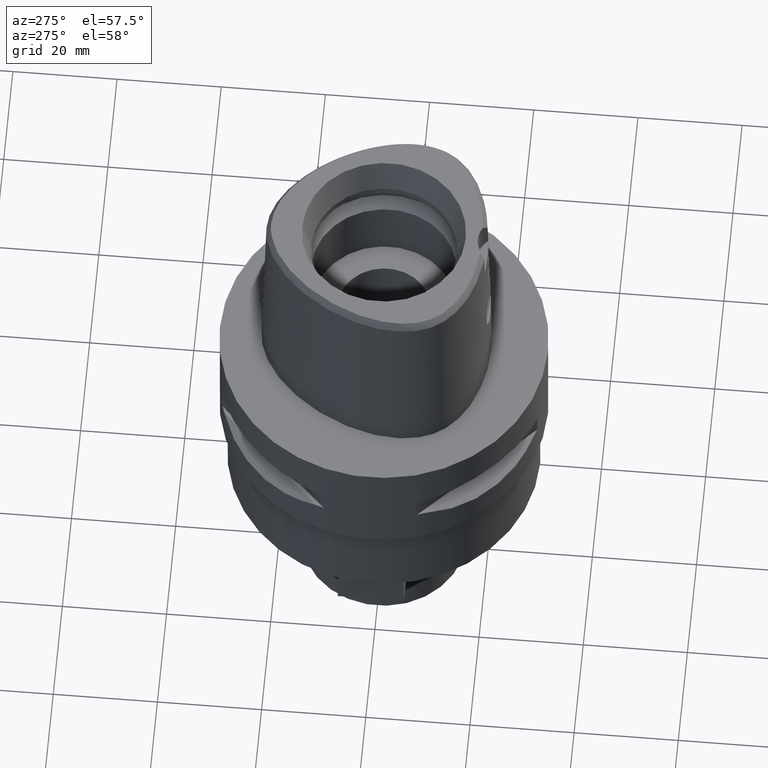
[diagram: clean part render]
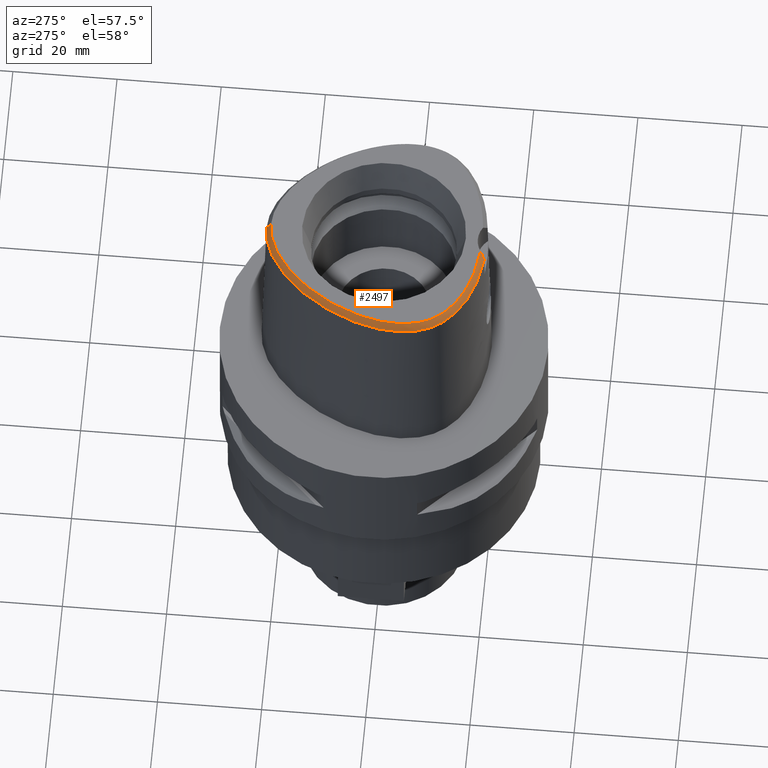
[diagram: same view with one face highlighted and labeled with its STEP entity id]
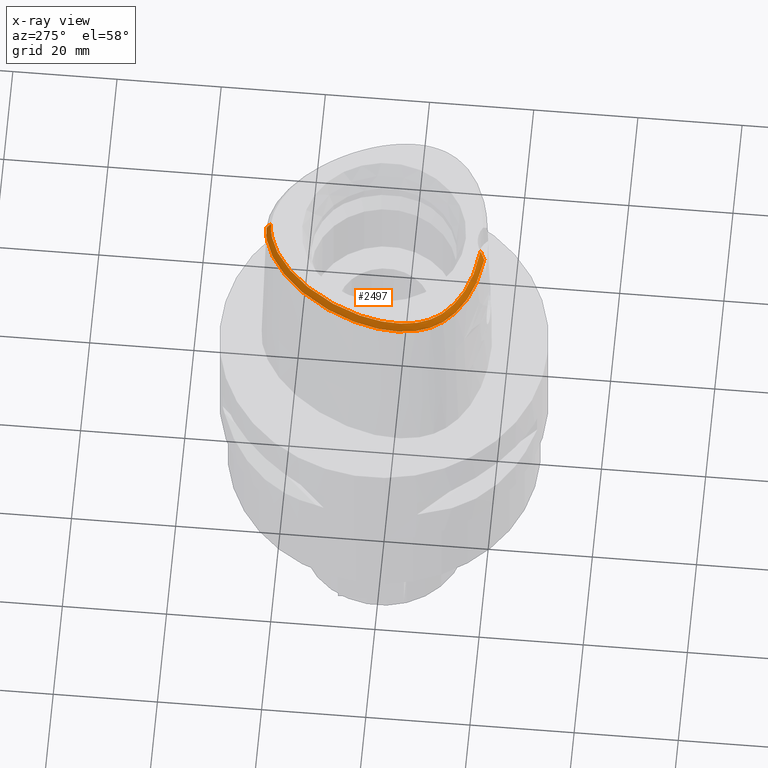
[diagram: x-ray of the same camera — body ghosted, the highlighted face saturated]
A machine part, auxiliary view. The second image highlights one B-rep face of the part: STEP entity #2497.
The next image is the same camera in x-ray: the body ghosted, the highlighted face saturated — about 0% of this face is hidden behind the body in this view.
In plain terms, the highlighted face is a freeform B-spline surface patch.
Its self-contained STEP definition (entity closure, byte-faithful):
#34=CARTESIAN_POINT('',(-2.682279906005E0,-1.878035848610E1,3.8E1));
#35=CARTESIAN_POINT('',(-3.542684252615E0,-1.871149542856E1,3.8E1));
#36=CARTESIAN_POINT('',(-5.170900762050E0,-1.851498175062E1,3.8E1));
#37=CARTESIAN_POINT('',(-7.384743339320E0,-1.807555510833E1,3.8E1));
#38=CARTESIAN_POINT('',(-9.236301783595E0,-1.756641540527E1,3.8E1));
#39=CARTESIAN_POINT('',(-1.085956236626E1,-1.700080306317E1,3.8E1));
#40=CARTESIAN_POINT('',(-1.233269681922E1,-1.636948330550E1,3.8E1));
#41=CARTESIAN_POINT('',(-1.367390539554E1,-1.567422530037E1,3.8E1));
#42=CARTESIAN_POINT('',(-1.489775850368E1,-1.491299728992E1,3.8E1));
#43=CARTESIAN_POINT('',(-1.601551275396E1,-1.407582522433E1,3.8E1));
#44=CARTESIAN_POINT('',(-1.697700266821E1,-1.320310694529E1,3.8E1));
#45=CARTESIAN_POINT('',(-1.777861122549E1,-1.231957036430E1,3.8E1));
#46=CARTESIAN_POINT('',(-1.843904442737E1,-1.142943643228E1,3.8E1));
#47=CARTESIAN_POINT('',(-1.898429820691E1,-1.051501724725E1,3.8E1));
#48=CARTESIAN_POINT('',(-1.944540071623E1,-9.525088501950E0,3.8E1));
#49=CARTESIAN_POINT('',(-1.983058892854E1,-8.426345650525E0,3.8E1));
#50=CARTESIAN_POINT('',(-2.013196699494E1,-7.195847311692E0,3.8E1));
#51=CARTESIAN_POINT('',(-2.033103332303E1,-5.827338183120E0,3.8E1));
#52=CARTESIAN_POINT('',(-2.040988868810E1,-4.395969024624E0,3.8E1));
#53=CARTESIAN_POINT('',(-2.037268694022E1,-2.907760486794E0,3.8E1));
#54=CARTESIAN_POINT('',(-2.021598093571E1,-1.338764890676E0,3.8E1));
#55=CARTESIAN_POINT('',(-1.993237140046E1,3.152115768366E-1,3.8E1));
#56=CARTESIAN_POINT('',(-1.949507058968E1,2.123537742689E0,3.8E1));
#57=CARTESIAN_POINT('',(-1.884170218999E1,4.181892070023E0,3.8E1));
#58=CARTESIAN_POINT('',(-1.792369696252E1,6.456800824738E0,3.8E1));
#59=CARTESIAN_POINT('',(-1.678338887765E1,8.749921771021E0,3.8E1));
#60=CARTESIAN_POINT('',(-1.547466348741E1,1.094681242026E1,3.8E1));
#61=CARTESIAN_POINT('',(-1.400561577317E1,1.303181560872E1,3.8E1));
#62=CARTESIAN_POINT('',(-1.249470891774E1,1.485421335933E1,3.8E1));
#63=CARTESIAN_POINT('',(-1.108622198193E1,1.631794580162E1,3.8E1));
#64=CARTESIAN_POINT('',(-9.765674941770E0,1.751518803746E1,3.8E1));
#65=CARTESIAN_POINT('',(-8.483038826251E0,1.852764142548E1,3.8E1));
#66=CARTESIAN_POINT('',(-7.208933178398E0,1.939336301656E1,3.8E1));
#67=CARTESIAN_POINT('',(-5.932895999780E0,2.012450270830E1,3.8E1));
#68=CARTESIAN_POINT('',(-4.655029159068E0,2.072139129841E1,3.8E1));
#69=CARTESIAN_POINT('',(-3.398657390787E0,2.117407849146E1,3.8E1));
#70=CARTESIAN_POINT('',(-2.205929336932E0,2.147805146315E1,3.8E1));
#71=CARTESIAN_POINT('',(-1.082079509466E0,2.165007100264E1,3.8E1));
#72=CARTESIAN_POINT('',(-3.556136655468E-1,2.168728795389E1,3.8E1));
#73=CARTESIAN_POINT('',(-3.470663397188E-11,2.168728795390E1,3.8E1));
#192=CARTESIAN_POINT('',(-2.682279906005E0,-1.878035848610E1,3.8E1));
#193=CARTESIAN_POINT('',(-2.797912367637E0,-1.885386203546E1,3.786059898424E1));
#194=CARTESIAN_POINT('',(-3.023156947592E0,-1.901042548575E1,3.756466629536E1));
#195=CARTESIAN_POINT('',(-3.340776899659E0,-1.927219914263E1,3.707384379575E1));
#196=CARTESIAN_POINT('',(-3.541104082211E0,-1.946723589967E1,3.671136089486E1));
#197=CARTESIAN_POINT('',(-3.637738201364E0,-1.956971413237E1,3.652186244848E1));
#202=CARTESIAN_POINT('',(-3.637738201364E0,-1.956971413237E1,3.652186244848E1));
#203=CARTESIAN_POINT('',(-4.486932885481E0,-1.947923535722E1,3.652183681646E1));
#204=CARTESIAN_POINT('',(-6.101212647339E0,-1.924210963504E1,3.652187752429E1));
#205=CARTESIAN_POINT('',(-8.254631691771E0,-1.875971295293E1,3.652186163132E1));
#206=CARTESIAN_POINT('',(-1.007598729789E1,-1.821444384571E1,3.652186218780E1));
#207=CARTESIAN_POINT('',(-1.169654532737E1,-1.760826827091E1,3.652186817716E1));
#208=CARTESIAN_POINT('',(-1.318420354667E1,-1.692845210417E1,3.652186461354E1));
#209=CARTESIAN_POINT('',(-1.454623217160E1,-1.617852293546E1,3.652186686001E1));
#210=CARTESIAN_POINT('',(-1.580964712866E1,-1.534227721997E1,3.652187346644E1));
#211=CARTESIAN_POINT('',(-1.692926369281E1,-1.444688220072E1,3.652186243370E1));
#212=CARTESIAN_POINT('',(-1.787345800209E1,-1.353569366994E1,3.652187701555E1));
#213=CARTESIAN_POINT('',(-1.867063399162E1,-1.260470986936E1,3.652185017249E1));
#214=CARTESIAN_POINT('',(-1.932886034372E1,-1.166552922317E1,3.652190248902E1));
#215=CARTESIAN_POINT('',(-1.987853970588E1,-1.068960508297E1,3.652186419304E1));
#216=CARTESIAN_POINT('',(-2.034776195062E1,-9.623507358363E0,3.652186400976E1));
#217=CARTESIAN_POINT('',(-2.073553510204E1,-8.445808241732E0,3.652187125078E1));
#218=CARTESIAN_POINT('',(-2.103240200113E1,-7.141622069972E0,3.652186475231E1));
#219=CARTESIAN_POINT('',(-2.122265042573E1,-5.695641138325E0,3.652186967309E1));
#220=CARTESIAN_POINT('',(-2.128749296478E1,-4.177126351640E0,3.652186545121E1));
#221=CARTESIAN_POINT('',(-2.122983439707E1,-2.610073835341E0,3.652186694925E1));
#222=CARTESIAN_POINT('',(-2.104763385542E1,-9.671913455925E-1,
3.652186739195E1));
#223=CARTESIAN_POINT('',(-2.073230745605E1,7.634491119599E-1,3.652186412544E1));
#224=CARTESIAN_POINT('',(-2.025446144837E1,2.654421161613E0,3.652186236132E1));
#225=CARTESIAN_POINT('',(-1.954675941223E1,4.803796890117E0,3.652186894586E1));
#226=CARTESIAN_POINT('',(-1.857319827940E1,7.140710386331E0,3.652185771818E1));
#227=CARTESIAN_POINT('',(-1.739857824020E1,9.445579087779E0,3.652185113077E1));
#228=CARTESIAN_POINT('',(-1.604940642725E1,1.166587527492E1,3.652187557152E1));
#229=CARTESIAN_POINT('',(-1.455493411980E1,1.375221108986E1,3.652185704300E1));
#230=CARTESIAN_POINT('',(-1.300329151091E1,1.559776192680E1,3.652187328236E1));
#231=CARTESIAN_POINT('',(-1.155862161445E1,1.707808949397E1,3.652185864653E1));
#232=CARTESIAN_POINT('',(-1.020478049702E1,1.828956605743E1,3.652186913946E1));
#233=CARTESIAN_POINT('',(-8.874682476541E0,1.932551116007E1,3.652186760214E1));
#234=CARTESIAN_POINT('',(-7.545395588133E0,2.021521272114E1,3.652186775024E1));
#235=CARTESIAN_POINT('',(-6.201273240435E0,2.097156371629E1,3.652186494857E1));
#236=CARTESIAN_POINT('',(-4.851360784127E0,2.158722018411E1,3.652187204991E1));
#237=CARTESIAN_POINT('',(-3.536645305539E0,2.204649321013E1,3.652186542900E1));
#238=CARTESIAN_POINT('',(-2.302563744641E0,2.235126219632E1,3.652188129796E1));
#239=CARTESIAN_POINT('',(-1.120650484306E0,2.252540464369E1,3.652177653667E1));
#240=CARTESIAN_POINT('',(-3.747147296148E-1,2.256201468012E1,3.652186680743E1));
#241=CARTESIAN_POINT('',(-1.528869574988E-11,2.256201468012E1,
3.652186680744E1));
#246=DIRECTION('',(-1.130551362479E-11,-5.092834681090E-1,8.605988316927E-1));
#247=VECTOR('',#246,1.717563559379E0);
#248=CARTESIAN_POINT('',(-1.528869574988E-11,2.256201468012E1,
3.652186680744E1));
#249=LINE('',#248,#247);
#253=CARTESIAN_POINT('',(-3.637738201364E0,-1.956971413237E1,3.652186244848E1));
#1729=CARTESIAN_POINT('',(-2.682279906007E0,-1.878035848610E1,3.8E1));
#1731=VERTEX_POINT('',#1729);
#1734=VERTEX_POINT('',#73);
#1745=VERTEX_POINT('',#253);
#1746=CARTESIAN_POINT('',(-1.528869574988E-11,2.256201468012E1,
3.652186680744E1));
#1747=VERTEX_POINT('',#1746);
#2241=CARTESIAN_POINT('',(5.898093660277E-1,2.158543294755E1,3.814548675373E1));
#2242=CARTESIAN_POINT('',(6.091653676367E-1,2.193386211718E1,3.755576774308E1));
#2243=CARTESIAN_POINT('',(6.285213692458E-1,2.228229128682E1,3.696604873243E1));
#2244=CARTESIAN_POINT('',(6.478773708549E-1,2.263072045646E1,3.637632972177E1));
#2245=CARTESIAN_POINT('',(3.881375314906E-1,2.159585889078E1,3.814548671110E1));
#2246=CARTESIAN_POINT('',(4.011042705876E-1,2.194465852400E1,3.755576787326E1));
#2247=CARTESIAN_POINT('',(4.140710096847E-1,2.229345815722E1,3.696604903542E1));
#2248=CARTESIAN_POINT('',(4.270377487817E-1,2.264225779043E1,3.637633019757E1));
#2249=CARTESIAN_POINT('',(-2.537208051187E-2,2.160716800241E1,
3.814548668170E1));
#2250=CARTESIAN_POINT('',(-2.613133781331E-2,2.195635558331E1,
3.755576796302E1));
#2251=CARTESIAN_POINT('',(-2.689059511475E-2,2.230554316420E1,
3.696604924434E1));
#2252=CARTESIAN_POINT('',(-2.764985241619E-2,2.265473074510E1,
3.637633052565E1));
#2253=CARTESIAN_POINT('',(-6.445009571746E-1,2.158780025950E1,
3.814548673204E1));
#2254=CARTESIAN_POINT('',(-6.663815284087E-1,2.193632344949E1,
3.755576780929E1));
#2255=CARTESIAN_POINT('',(-6.882620996428E-1,2.228484663948E1,
3.696604888654E1));
#2256=CARTESIAN_POINT('',(-7.101426708769E-1,2.263336982947E1,
3.637632996379E1));
#2257=CARTESIAN_POINT('',(-1.312964808659E0,2.152550651623E1,3.814548676288E1));
#2258=CARTESIAN_POINT('',(-1.356375857555E0,2.187200092598E1,3.755576771517E1));
#2259=CARTESIAN_POINT('',(-1.399786906451E0,2.221849533574E1,3.696604866747E1));
#2260=CARTESIAN_POINT('',(-1.443197955347E0,2.256498974549E1,3.637632961977E1));
#2261=CARTESIAN_POINT('',(-2.001102303137E0,2.141814363534E1,3.814548671196E1));
#2262=CARTESIAN_POINT('',(-2.065644411550E0,2.176132510905E1,3.755576787062E1));
#2263=CARTESIAN_POINT('',(-2.130186519963E0,2.210450658276E1,3.696604902929E1));
#2264=CARTESIAN_POINT('',(-2.194728628376E0,2.244768805647E1,3.637633018795E1));
#2265=CARTESIAN_POINT('',(-2.714698494356E0,2.126204244383E1,3.814548665849E1));
#2266=CARTESIAN_POINT('',(-2.799819321881E0,2.160070000363E1,3.755576803389E1));
#2267=CARTESIAN_POINT('',(-2.884940149406E0,2.193935756344E1,3.696604940929E1));
#2268=CARTESIAN_POINT('',(-2.970060976932E0,2.227801512325E1,3.637633078469E1));
#2269=CARTESIAN_POINT('',(-3.455094024799E0,2.105294491064E1,3.814548667003E1));
#2270=CARTESIAN_POINT('',(-3.560171572799E0,2.138594419104E1,3.755576799866E1));
#2271=CARTESIAN_POINT('',(-3.665249120800E0,2.171894347145E1,3.696604932729E1));
#2272=CARTESIAN_POINT('',(-3.770326668800E0,2.205194275185E1,3.637633065592E1));
#2273=CARTESIAN_POINT('',(-4.223886859376E0,2.078610331193E1,3.814548671299E1));
#2274=CARTESIAN_POINT('',(-4.348214534956E0,2.111239688427E1,3.755576786747E1));
#2275=CARTESIAN_POINT('',(-4.472542210536E0,2.143869045660E1,3.696604902194E1));
#2276=CARTESIAN_POINT('',(-4.596869886115E0,2.176498402894E1,3.637633017642E1));
#2277=CARTESIAN_POINT('',(-5.022987421240E0,2.045584795473E1,3.814548666634E1));
#2278=CARTESIAN_POINT('',(-5.165801753445E0,2.077447573189E1,3.755576800994E1));
#2279=CARTESIAN_POINT('',(-5.308616085650E0,2.109310350905E1,3.696604935354E1));
#2280=CARTESIAN_POINT('',(-5.451430417855E0,2.141173128621E1,3.637633069714E1));
#2281=CARTESIAN_POINT('',(-5.853955413870E0,2.005584965462E1,3.814548665391E1));
#2282=CARTESIAN_POINT('',(-6.014422585839E0,2.036595392107E1,3.755576804790E1));
#2283=CARTESIAN_POINT('',(-6.174889757809E0,2.067605818751E1,3.696604944189E1));
#2284=CARTESIAN_POINT('',(-6.335356929779E0,2.098616245395E1,3.637633083589E1));
#2285=CARTESIAN_POINT('',(-6.715697240747E0,1.958033935E1,3.814548671019E1));
#2286=CARTESIAN_POINT('',(-6.892979802224E0,1.988113873090E1,3.755576787600E1));
#2287=CARTESIAN_POINT('',(-7.070262363700E0,2.018193811180E1,3.696604904181E1));
#2288=CARTESIAN_POINT('',(-7.247544925177E0,2.048273749270E1,3.637633020763E1));
#2289=CARTESIAN_POINT('',(-7.607553768072E0,1.902277979740E1,3.814548670690E1));
#2290=CARTESIAN_POINT('',(-7.800776687245E0,1.931358757640E1,3.755576788607E1));
#2291=CARTESIAN_POINT('',(-7.993999606418E0,1.960439535540E1,3.696604906525E1));
#2292=CARTESIAN_POINT('',(-8.187222525590E0,1.989520313440E1,3.637633024442E1));
#2293=CARTESIAN_POINT('',(-8.526834037250E0,1.837743950038E1,3.814548675756E1));
#2294=CARTESIAN_POINT('',(-8.735125108121E0,1.865764424377E1,3.755576773141E1));
#2295=CARTESIAN_POINT('',(-8.943416178992E0,1.893784898715E1,3.696604870527E1));
#2296=CARTESIAN_POINT('',(-9.151707249863E0,1.921805373054E1,3.637632967913E1));
#2297=CARTESIAN_POINT('',(-9.469442653189E0,1.763921054972E1,3.814548657416E1));
#2298=CARTESIAN_POINT('',(-9.691953658514E0,1.790825381789E1,3.755576829140E1));
#2299=CARTESIAN_POINT('',(-9.914464663838E0,1.817729708607E1,3.696605000865E1));
#2300=CARTESIAN_POINT('',(-1.013697566916E1,1.844634035425E1,3.637633172589E1));
#2301=CARTESIAN_POINT('',(-1.043143767159E1,1.680281224439E1,3.814548635376E1));
#2302=CARTESIAN_POINT('',(-1.066729225876E1,1.706022994465E1,3.755576896438E1));
#2303=CARTESIAN_POINT('',(-1.090314684593E1,1.731764764491E1,3.696605157499E1));
#2304=CARTESIAN_POINT('',(-1.113900143309E1,1.757506534517E1,3.637633418561E1));
#2305=CARTESIAN_POINT('',(-1.140436614484E1,1.586688344335E1,3.814548637126E1));
#2306=CARTESIAN_POINT('',(-1.165273990042E1,1.611223683987E1,3.755576891092E1));
#2307=CARTESIAN_POINT('',(-1.190111365601E1,1.635759023639E1,3.696605145059E1));
#2308=CARTESIAN_POINT('',(-1.214948741160E1,1.660294363290E1,3.637633399025E1));
#2309=CARTESIAN_POINT('',(-1.237700347368E1,1.483382992030E1,3.814548663286E1));
#2310=CARTESIAN_POINT('',(-1.263709323195E1,1.506672144803E1,3.755576811216E1));
#2311=CARTESIAN_POINT('',(-1.289718299021E1,1.529961297576E1,3.696604959145E1));
#2312=CARTESIAN_POINT('',(-1.315727274848E1,1.553250450348E1,3.637633107075E1));
#2313=CARTESIAN_POINT('',(-1.333748563480E1,1.370840206331E1,3.814548675615E1));
#2314=CARTESIAN_POINT('',(-1.360854100362E1,1.392842889677E1,3.755576773570E1));
#2315=CARTESIAN_POINT('',(-1.387959637244E1,1.414845573023E1,3.696604871525E1));
#2316=CARTESIAN_POINT('',(-1.415065174127E1,1.436848256369E1,3.637632969480E1));
#2317=CARTESIAN_POINT('',(-1.427463568360E1,1.249659648248E1,3.814548664650E1));
#2318=CARTESIAN_POINT('',(-1.455589522979E1,1.270341506635E1,3.755576807051E1));
#2319=CARTESIAN_POINT('',(-1.483715477599E1,1.291023365022E1,3.696604949452E1));
#2320=CARTESIAN_POINT('',(-1.511841432218E1,1.311705223410E1,3.637633091853E1));
#2321=CARTESIAN_POINT('',(-1.517519443933E1,1.120949988790E1,3.814548662133E1));
#2322=CARTESIAN_POINT('',(-1.546594765578E1,1.140274145468E1,3.755576814737E1));
#2323=CARTESIAN_POINT('',(-1.575670087223E1,1.159598302145E1,3.696604967341E1));
#2324=CARTESIAN_POINT('',(-1.604745408868E1,1.178922458822E1,3.637633119945E1));
#2325=CARTESIAN_POINT('',(-1.602415801397E1,9.864509356620E0,3.814548670893E1));
#2326=CARTESIAN_POINT('',(-1.632371207880E1,1.004380494783E1,3.755576787988E1));
#2327=CARTESIAN_POINT('',(-1.662326614362E1,1.022310053903E1,3.696604905084E1));
#2328=CARTESIAN_POINT('',(-1.692282020844E1,1.040239613024E1,3.637633022179E1));
#2329=CARTESIAN_POINT('',(-1.681056867439E1,8.477131996285E0,3.814548667616E1));
#2330=CARTESIAN_POINT('',(-1.711826533368E1,8.642063436666E0,3.755576797994E1));
#2331=CARTESIAN_POINT('',(-1.742596199298E1,8.806994877047E0,3.696604928371E1));
#2332=CARTESIAN_POINT('',(-1.773365865227E1,8.971926317428E0,3.637633058749E1));
#2333=CARTESIAN_POINT('',(-1.752652072366E1,7.061718301227E0,3.814548661875E1));
#2334=CARTESIAN_POINT('',(-1.784166926260E1,7.211922805241E0,3.755576815522E1));
#2335=CARTESIAN_POINT('',(-1.815681780154E1,7.362127309254E0,3.696604969168E1));
#2336=CARTESIAN_POINT('',(-1.847196634049E1,7.512331813267E0,3.637633122814E1));
#2337=CARTESIAN_POINT('',(-1.816360450045E1,5.637914673099E0,3.814548668105E1));
#2338=CARTESIAN_POINT('',(-1.848554011432E1,5.772966136123E0,3.755576796499E1));
#2339=CARTESIAN_POINT('',(-1.880747572818E1,5.908017599148E0,3.696604924893E1));
#2340=CARTESIAN_POINT('',(-1.912941134205E1,6.043069062173E0,3.637633053286E1));
#2341=CARTESIAN_POINT('',(-1.871556811880E1,4.226786066406E0,3.814548676536E1));
#2342=CARTESIAN_POINT('',(-1.904361432297E1,4.346239835574E0,3.755576770756E1));
#2343=CARTESIAN_POINT('',(-1.937166052714E1,4.465693604741E0,3.696604864976E1));
#2344=CARTESIAN_POINT('',(-1.969970673132E1,4.585147373909E0,3.637632959196E1));
#2345=CARTESIAN_POINT('',(-1.918097716044E1,2.843067653640E0,3.814548652557E1));
#2346=CARTESIAN_POINT('',(-1.951444306564E1,2.946443004232E0,3.755576843977E1));
#2347=CARTESIAN_POINT('',(-1.984790897084E1,3.049818354824E0,3.696605035397E1));
#2348=CARTESIAN_POINT('',(-2.018137487604E1,3.153193705415E0,3.637633226817E1));
#2349=CARTESIAN_POINT('',(-1.956091602331E1,1.498830725528E0,3.814548633111E1));
#2350=CARTESIAN_POINT('',(-1.989907070936E1,1.585665786311E0,3.755576903352E1));
#2351=CARTESIAN_POINT('',(-2.023722539541E1,1.672500847094E0,3.696605173592E1));
#2352=CARTESIAN_POINT('',(-2.057538008146E1,1.759335907877E0,3.637633443833E1));
#2353=CARTESIAN_POINT('',(-1.985749578923E1,2.070358300489E-1,
3.814548639835E1));
#2354=CARTESIAN_POINT('',(-2.019957948081E1,2.768303300384E-1,
3.755576882822E1));
#2355=CARTESIAN_POINT('',(-2.054166317239E1,3.466248300278E-1,
3.696605125810E1));
#2356=CARTESIAN_POINT('',(-2.088374686397E1,4.164193300173E-1,
3.637633368797E1));
#2357=CARTESIAN_POINT('',(-2.007496593124E1,-1.022590179154E0,
3.814548666504E1));
#2358=CARTESIAN_POINT('',(-2.042017044100E1,-9.703334614786E-1,
3.755576801390E1));
#2359=CARTESIAN_POINT('',(-2.076537495075E1,-9.180767438036E-1,
3.696604936276E1));
#2360=CARTESIAN_POINT('',(-2.111057946051E1,-8.658200261285E-1,
3.637633071162E1));
#2361=CARTESIAN_POINT('',(-2.021926271910E1,-2.185814849232E0,
3.814548674983E1));
#2362=CARTESIAN_POINT('',(-2.056672794271E1,-2.151620383318E0,
3.755576775502E1));
#2363=CARTESIAN_POINT('',(-2.091419316631E1,-2.117425917404E0,
3.696604876022E1));
#2364=CARTESIAN_POINT('',(-2.126165838991E1,-2.083231451489E0,
3.637632976542E1));
#2365=CARTESIAN_POINT('',(-2.029696504899E1,-3.282217059269E0,
3.814548671366E1));
#2366=CARTESIAN_POINT('',(-2.064576240446E1,-3.266521379780E0,
3.755576786544E1));
#2367=CARTESIAN_POINT('',(-2.099455975994E1,-3.250825700291E0,
3.696604901721E1));
#2368=CARTESIAN_POINT('',(-2.134335711542E1,-3.235130020801E0,
3.637633016899E1));
#2369=CARTESIAN_POINT('',(-2.031446698828E1,-4.310613675546E0,
3.814548669565E1));
#2370=CARTESIAN_POINT('',(-2.066360948568E1,-4.313872341336E0,
3.755576792046E1));
#2371=CARTESIAN_POINT('',(-2.101275198308E1,-4.317131007126E0,
3.696604914527E1));
#2372=CARTESIAN_POINT('',(-2.136189448048E1,-4.320389672916E0,
3.637633037009E1));
#2373=CARTESIAN_POINT('',(-2.027802616634E1,-5.272898222201E0,
3.814548662194E1));
#2374=CARTESIAN_POINT('',(-2.062645950363E1,-5.295485928525E0,
3.755576814549E1));
#2375=CARTESIAN_POINT('',(-2.097489284093E1,-5.318073634849E0,
3.696604966903E1));
#2376=CARTESIAN_POINT('',(-2.132332617823E1,-5.340661341174E0,
3.637633119257E1));
#2377=CARTESIAN_POINT('',(-2.019347578210E1,-6.171500876288E0,
3.814548666973E1));
#2378=CARTESIAN_POINT('',(-2.054008391583E1,-6.213740396906E0,
3.755576799957E1));
#2379=CARTESIAN_POINT('',(-2.088669204957E1,-6.255979917524E0,
3.696604932940E1));
#2380=CARTESIAN_POINT('',(-2.123330018330E1,-6.298219438143E0,
3.637633065924E1));
#2381=CARTESIAN_POINT('',(-2.006613228499E1,-7.008893156022E0,
3.814548672700E1));
#2382=CARTESIAN_POINT('',(-2.040973535628E1,-7.071050309579E0,
3.755576782473E1));
#2383=CARTESIAN_POINT('',(-2.075333842756E1,-7.133207463137E0,
3.696604892246E1));
#2384=CARTESIAN_POINT('',(-2.109694149885E1,-7.195364616695E0,
3.637633002020E1));
#2385=CARTESIAN_POINT('',(-1.990047099558E1,-7.789614030341E0,
3.814548672208E1));
#2386=CARTESIAN_POINT('',(-2.023983922599E1,-7.871837119443E0,
3.755576783973E1));
#2387=CARTESIAN_POINT('',(-2.057920745640E1,-7.954060208544E0,
3.696604895738E1));
#2388=CARTESIAN_POINT('',(-2.091857568681E1,-8.036283297645E0,
3.637633007502E1));
#2389=CARTESIAN_POINT('',(-1.970025715955E1,-8.517898772228E0,
3.814548671288E1));
#2390=CARTESIAN_POINT('',(-2.003411694337E1,-8.620240429655E0,
3.755576786784E1));
#2391=CARTESIAN_POINT('',(-2.036797672718E1,-8.722582087083E0,
3.696604902280E1));
#2392=CARTESIAN_POINT('',(-2.070183651100E1,-8.824923744511E0,
3.637633017776E1));
#2393=CARTESIAN_POINT('',(-1.946851566249E1,-9.197972175951E0,
3.814548666971E1));
#2394=CARTESIAN_POINT('',(-1.979556008596E1,-9.320375810367E0,
3.755576799965E1));
#2395=CARTESIAN_POINT('',(-2.012260450943E1,-9.442779444784E0,
3.696604932959E1));
#2396=CARTESIAN_POINT('',(-2.044964893289E1,-9.565183079201E0,
3.637633065953E1));
#2397=CARTESIAN_POINT('',(-1.920724043340E1,-9.834584173273E0,
3.814548669405E1));
#2398=CARTESIAN_POINT('',(-1.952614993770E1,-9.976852256234E0,
3.755576792531E1));
#2399=CARTESIAN_POINT('',(-1.984505944201E1,-1.011912033919E1,
3.696604915657E1));
#2400=CARTESIAN_POINT('',(-2.016396894632E1,-1.026138842216E1,
3.637633038784E1));
#2401=CARTESIAN_POINT('',(-1.891886135874E1,-1.042976681666E1,
3.814548673625E1));
#2402=CARTESIAN_POINT('',(-1.922832966134E1,-1.059156567867E1,
3.755576779646E1));
#2403=CARTESIAN_POINT('',(-1.953779796394E1,-1.075336454068E1,
3.696604885668E1));
#2404=CARTESIAN_POINT('',(-1.984726626653E1,-1.091516340269E1,
3.637632991689E1));
#2405=CARTESIAN_POINT('',(-1.860241690532E1,-1.099094522336E1,
3.814548669320E1));
#2406=CARTESIAN_POINT('',(-1.890103050655E1,-1.117199855064E1,
3.755576792792E1));
#2407=CARTESIAN_POINT('',(-1.919964410777E1,-1.135305187791E1,
3.696604916264E1));
#2408=CARTESIAN_POINT('',(-1.949825770900E1,-1.153410520518E1,
3.637633039737E1));
#2409=CARTESIAN_POINT('',(-1.824674248740E1,-1.153874598811E1,
3.814548673618E1));
#2410=CARTESIAN_POINT('',(-1.853348004356E1,-1.173806060861E1,
3.755576779667E1));
#2411=CARTESIAN_POINT('',(-1.882021759971E1,-1.193737522911E1,
3.696604885717E1));
#2412=CARTESIAN_POINT('',(-1.910695515587E1,-1.213668984961E1,
3.637632991767E1));
#2413=CARTESIAN_POINT('',(-1.784248217441E1,-1.208434256201E1,
3.814548665648E1));
#2414=CARTESIAN_POINT('',(-1.811638375676E1,-1.230095215403E1,
3.755576804002E1));
#2415=CARTESIAN_POINT('',(-1.839028533910E1,-1.251756174605E1,
3.696604942356E1));
#2416=CARTESIAN_POINT('',(-1.866418692145E1,-1.273417133807E1,
3.637633080710E1));
#2417=CARTESIAN_POINT('',(-1.738700601855E1,-1.262620033866E1,
3.814548670559E1));
#2418=CARTESIAN_POINT('',(-1.764719929046E1,-1.285908896171E1,
3.755576789009E1));
#2419=CARTESIAN_POINT('',(-1.790739256237E1,-1.309197758476E1,
3.696604907458E1));
#2420=CARTESIAN_POINT('',(-1.816758583427E1,-1.332486620781E1,
3.637633025908E1));
#2421=CARTESIAN_POINT('',(-1.687575568476E1,-1.316472945990E1,
3.814548671866E1));
#2422=CARTESIAN_POINT('',(-1.712149655147E1,-1.341281096902E1,
3.755576785016E1));
#2423=CARTESIAN_POINT('',(-1.736723741819E1,-1.366089247814E1,
3.696604898167E1));
#2424=CARTESIAN_POINT('',(-1.761297828491E1,-1.390897398727E1,
3.637633011318E1));
#2425=CARTESIAN_POINT('',(-1.630341870080E1,-1.369991092645E1,
3.814548672778E1));
#2426=CARTESIAN_POINT('',(-1.653407969982E1,-1.396206297582E1,
3.755576782235E1));
#2427=CARTESIAN_POINT('',(-1.676474069883E1,-1.422421502518E1,
3.696604891692E1));
#2428=CARTESIAN_POINT('',(-1.699540169785E1,-1.448636707454E1,
3.637633001149E1));
#2429=CARTESIAN_POINT('',(-1.566483265490E1,-1.423056591651E1,
3.814548669794E1));
#2430=CARTESIAN_POINT('',(-1.587989285284E1,-1.450565171024E1,
3.755576791342E1));
#2431=CARTESIAN_POINT('',(-1.609495305078E1,-1.478073750397E1,
3.696604912891E1));
#2432=CARTESIAN_POINT('',(-1.631001324872E1,-1.505582329769E1,
3.637633034439E1));
#2433=CARTESIAN_POINT('',(-1.495384635200E1,-1.475540857753E1,
3.814548662444E1));
#2434=CARTESIAN_POINT('',(-1.515290811998E1,-1.504227456250E1,
3.755576813786E1));
#2435=CARTESIAN_POINT('',(-1.535196988796E1,-1.532914054747E1,
3.696604965128E1));
#2436=CARTESIAN_POINT('',(-1.555103165593E1,-1.561600653244E1,
3.637633116470E1));
#2437=CARTESIAN_POINT('',(-1.416492817048E1,-1.527179400568E1,
3.814548666673E1));
#2438=CARTESIAN_POINT('',(-1.434768814127E1,-1.556930290096E1,
3.755576800873E1));
#2439=CARTESIAN_POINT('',(-1.453044811207E1,-1.586681179625E1,
3.696604935073E1));
#2440=CARTESIAN_POINT('',(-1.471320808286E1,-1.616432069153E1,
3.637633069273E1));
#2441=CARTESIAN_POINT('',(-1.329356991042E1,-1.577573390525E1,
3.814548671641E1));
#2442=CARTESIAN_POINT('',(-1.345979221637E1,-1.608278079824E1,
3.755576785704E1));
#2443=CARTESIAN_POINT('',(-1.362601452233E1,-1.638982769124E1,
3.696604899767E1));
#2444=CARTESIAN_POINT('',(-1.379223682828E1,-1.669687458423E1,
3.637633013829E1));
#2445=CARTESIAN_POINT('',(-1.233442816323E1,-1.626321026706E1,
3.814548672706E1));
#2446=CARTESIAN_POINT('',(-1.248399276464E1,-1.657869903639E1,
3.755576782450E1));
#2447=CARTESIAN_POINT('',(-1.263355736606E1,-1.689418780572E1,
3.696604892194E1));
#2448=CARTESIAN_POINT('',(-1.278312196748E1,-1.720967657506E1,
3.637633001938E1));
#2449=CARTESIAN_POINT('',(-1.128514206182E1,-1.672831099455E1,
3.814548673327E1));
#2450=CARTESIAN_POINT('',(-1.141795956124E1,-1.705120077395E1,
3.755576780556E1));
#2451=CARTESIAN_POINT('',(-1.155077706066E1,-1.737409055335E1,
3.696604887785E1));
#2452=CARTESIAN_POINT('',(-1.168359456008E1,-1.769698033275E1,
3.637632995013E1));
#2453=CARTESIAN_POINT('',(-1.014272845793E1,-1.716520783735E1,
3.814548647981E1));
#2454=CARTESIAN_POINT('',(-1.025878713521E1,-1.749448623641E1,
3.755576857950E1));
#2455=CARTESIAN_POINT('',(-1.037484581248E1,-1.782376463547E1,
3.696605067920E1));
#2456=CARTESIAN_POINT('',(-1.049090448975E1,-1.815304303454E1,
3.637633277889E1));
#2457=CARTESIAN_POINT('',(-8.905591862300E0,-1.756743061065E1,
3.814548633817E1));
#2458=CARTESIAN_POINT('',(-9.004917543260E0,-1.790213119436E1,
3.755576901197E1));
#2459=CARTESIAN_POINT('',(-9.104243224220E0,-1.823683177807E1,
3.696605168576E1));
#2460=CARTESIAN_POINT('',(-9.203568905180E0,-1.857153236178E1,
3.637633435955E1));
#2461=CARTESIAN_POINT('',(-7.578983638017E0,-1.792642404509E1,
3.814548644643E1));
#2462=CARTESIAN_POINT('',(-7.661620201556E0,-1.826562605561E1,
3.755576868142E1));
#2463=CARTESIAN_POINT('',(-7.744256765096E0,-1.860482806614E1,
3.696605091640E1));
#2464=CARTESIAN_POINT('',(-7.826893328635E0,-1.894403007666E1,
3.637633315138E1));
#2465=CARTESIAN_POINT('',(-6.172093909643E0,-1.823372987469E1,
3.814548672638E1));
#2466=CARTESIAN_POINT('',(-6.238092866740E0,-1.857655403648E1,
3.755576782659E1));
#2467=CARTESIAN_POINT('',(-6.304091823838E0,-1.891937819828E1,
3.696604892681E1));
#2468=CARTESIAN_POINT('',(-6.370090780935E0,-1.926220236007E1,
3.637633002703E1));
#2469=CARTESIAN_POINT('',(-4.694806273915E0,-1.848195648042E1,
3.814548670780E1));
#2470=CARTESIAN_POINT('',(-4.744209977368E0,-1.882755941479E1,
3.755576788337E1));
#2471=CARTESIAN_POINT('',(-4.793613680822E0,-1.917316234916E1,
3.696604905893E1));
#2472=CARTESIAN_POINT('',(-4.843017384276E0,-1.951876528352E1,
3.637633023450E1));
#2473=CARTESIAN_POINT('',(-3.513842264159E0,-1.862248160744E1,
3.814548663153E1));
#2474=CARTESIAN_POINT('',(-3.550544267369E0,-1.896959034296E1,
3.755576811622E1));
#2475=CARTESIAN_POINT('',(-3.587246270579E0,-1.931669907849E1,
3.696604960092E1));
#2476=CARTESIAN_POINT('',(-3.623948273789E0,-1.966380781402E1,
3.637633108561E1));
#2477=CARTESIAN_POINT('',(-2.631875431648E0,-1.869949998442E1,
3.814548662156E1));
#2478=CARTESIAN_POINT('',(-2.659258667417E0,-1.904742241050E1,
3.755576814667E1));
#2479=CARTESIAN_POINT('',(-2.686641903187E0,-1.939534483658E1,
3.696604967179E1));
#2480=CARTESIAN_POINT('',(-2.714025138956E0,-1.974326726266E1,
3.637633119690E1));
#2481=CARTESIAN_POINT('',(-2.267913806279E0,-1.872526352110E1,
3.814548662615E1));
#2482=CARTESIAN_POINT('',(-2.291481303911E0,-1.907345591710E1,
3.755576813266E1));
#2483=CARTESIAN_POINT('',(-2.315048801543E0,-1.942164831311E1,
3.696604963917E1));
#2484=CARTESIAN_POINT('',(-2.338616299176E0,-1.976984070912E1,
3.637633114569E1));
#2485=CARTESIAN_POINT('',(-2.063322010714E0,-1.873785383434E1,
3.814548663089E1));
#2486=CARTESIAN_POINT('',(-2.084751493368E0,-1.908617777687E1,
3.755576811817E1));
#2487=CARTESIAN_POINT('',(-2.106180976022E0,-1.943450171941E1,
3.696604960545E1));
#2488=CARTESIAN_POINT('',(-2.127610458676E0,-1.978282566194E1,
3.637633109272E1));
#2489=B_SPLINE_SURFACE_WITH_KNOTS('',3,3,((#2241,#2242,#2243,#2244),(#2245,
#2246,#2247,#2248),(#2249,#2250,#2251,#2252),(#2253,#2254,#2255,#2256),(#2257,
#2258,#2259,#2260),(#2261,#2262,#2263,#2264),(#2265,#2266,#2267,#2268),(#2269,
#2270,#2271,#2272),(#2273,#2274,#2275,#2276),(#2277,#2278,#2279,#2280),(#2281,
#2282,#2283,#2284),(#2285,#2286,#2287,#2288),(#2289,#2290,#2291,#2292),(#2293,
#2294,#2295,#2296),(#2297,#2298,#2299,#2300),(#2301,#2302,#2303,#2304),(#2305,
#2306,#2307,#2308),(#2309,#2310,#2311,#2312),(#2313,#2314,#2315,#2316),(#2317,
#2318,#2319,#2320),(#2321,#2322,#2323,#2324),(#2325,#2326,#2327,#2328),(#2329,
#2330,#2331,#2332),(#2333,#2334,#2335,#2336),(#2337,#2338,#2339,#2340),(#2341,
#2342,#2343,#2344),(#2345,#2346,#2347,#2348),(#2349,#2350,#2351,#2352),(#2353,
#2354,#2355,#2356),(#2357,#2358,#2359,#2360),(#2361,#2362,#2363,#2364),(#2365,
#2366,#2367,#2368),(#2369,#2370,#2371,#2372),(#2373,#2374,#2375,#2376),(#2377,
#2378,#2379,#2380),(#2381,#2382,#2383,#2384),(#2385,#2386,#2387,#2388),(#2389,
#2390,#2391,#2392),(#2393,#2394,#2395,#2396),(#2397,#2398,#2399,#2400),(#2401,
#2402,#2403,#2404),(#2405,#2406,#2407,#2408),(#2409,#2410,#2411,#2412),(#2413,
#2414,#2415,#2416),(#2417,#2418,#2419,#2420),(#2421,#2422,#2423,#2424),(#2425,
#2426,#2427,#2428),(#2429,#2430,#2431,#2432),(#2433,#2434,#2435,#2436),(#2437,
#2438,#2439,#2440),(#2441,#2442,#2443,#2444),(#2445,#2446,#2447,#2448),(#2449,
#2450,#2451,#2452),(#2453,#2454,#2455,#2456),(#2457,#2458,#2459,#2460),(#2461,
#2462,#2463,#2464),(#2465,#2466,#2467,#2468),(#2469,#2470,#2471,#2472),(#2473,
#2474,#2475,#2476),(#2477,#2478,#2479,#2480),(#2481,#2482,#2483,#2484),(#2485,
#2486,#2487,#2488)),.UNSPECIFIED.,.F.,.F.,.F.,(4,1,1,1,1,1,1,1,1,1,1,1,1,1,1,1,
1,1,1,1,1,1,1,1,1,1,1,1,1,1,1,1,1,1,1,1,1,1,1,1,1,1,1,1,1,1,1,1,1,1,1,1,1,1,1,1,
1,1,1,4),(4,4),(-1.585043674195E-2,0.E0,1.776034072166E-2,3.552068144392E-2,
5.328102216617E-2,7.104136288843E-2,8.880170361069E-2,1.065620443330E-1,
1.243223850552E-1,1.420827257775E-1,1.598430664997E-1,1.776034072219E-1,
1.953637479442E-1,2.131240886664E-1,2.308844293888E-1,2.486447701110E-1,
2.664051108333E-1,2.841654515555E-1,3.019257922778E-1,3.19686133E-1,
3.374464737223E-1,3.552068144445E-1,3.729671551668E-1,3.907274958891E-1,
4.084878366113E-1,4.262481773336E-1,4.440085180558E-1,4.617688587781E-1,
4.795291995003E-1,4.972895402226E-1,5.150498809448E-1,5.328102216671E-1,
5.505705623894E-1,5.683309031116E-1,5.860912438339E-1,6.038515845561E-1,
6.216119252784E-1,6.393722660006E-1,6.571326067229E-1,6.748929474452E-1,
6.926532881674E-1,7.104136288897E-1,7.281739696119E-1,7.459343103342E-1,
7.636946510564E-1,7.814549917787E-1,7.992153325009E-1,8.169756732232E-1,
8.347360139455E-1,8.524963546678E-1,8.702566953900E-1,8.880170361122E-1,
9.057773768345E-1,9.235377175567E-1,9.412980582790E-1,9.590583990012E-1,
9.768187397236E-1,9.945790804458E-1,1.E0,1.006922200500E0),(-7.540910450434E-2,
1.075436548627E0),.UNSPECIFIED.);
#2490=ORIENTED_EDGE('',*,*,#1978,.T.);
#2492=ORIENTED_EDGE('',*,*,#2491,.T.);
#2493=ORIENTED_EDGE('',*,*,#2234,.T.);
#2494=ORIENTED_EDGE('',*,*,#1948,.F.);
#2495=EDGE_LOOP('',(#2490,#2492,#2493,#2494));
#2496=FACE_OUTER_BOUND('',#2495,.F.);
#74=B_SPLINE_CURVE_WITH_KNOTS('',3,(#34,#35,#36,#37,#38,#39,#40,#41,#42,#43,#44,
#45,#46,#47,#48,#49,#50,#51,#52,#53,#54,#55,#56,#57,#58,#59,#60,#61,#62,#63,#64,
#65,#66,#67,#68,#69,#70,#71,#72,#73),.UNSPECIFIED.,.F.,.F.,(4,1,1,1,1,1,1,1,1,1,
1,1,1,1,1,1,1,1,1,1,1,1,1,1,1,1,1,1,1,1,1,1,1,1,1,1,1,4),(0.E0,
2.702702702703E-2,5.405405405405E-2,8.108108108108E-2,1.081081081081E-1,
1.351351351351E-1,1.621621621622E-1,1.891891891892E-1,2.162162162162E-1,
2.432432432432E-1,2.702702702703E-1,2.972972972973E-1,3.243243243243E-1,
3.513513513514E-1,3.783783783784E-1,4.054054054054E-1,4.324324324324E-1,
4.594594594595E-1,4.864864864865E-1,5.135135135135E-1,5.405405405405E-1,
5.675675675676E-1,5.945945945946E-1,6.216216216216E-1,6.486486486486E-1,
6.756756756757E-1,7.027027027027E-1,7.297297297297E-1,7.567567567568E-1,
7.837837837838E-1,8.108108108108E-1,8.378378378378E-1,8.648648648649E-1,
8.918918918919E-1,9.189189189189E-1,9.459459459459E-1,9.729729729730E-1,1.E0),
.UNSPECIFIED.);
#198=B_SPLINE_CURVE_WITH_KNOTS('',3,(#192,#193,#194,#195,#196,#197),
.UNSPECIFIED.,.F.,.F.,(4,1,1,4),(0.E0,3.333333333333E-1,6.666666666667E-1,1.E0),
.UNSPECIFIED.);
#242=B_SPLINE_CURVE_WITH_KNOTS('',3,(#202,#203,#204,#205,#206,#207,#208,#209,
#210,#211,#212,#213,#214,#215,#216,#217,#218,#219,#220,#221,#222,#223,#224,#225,
#226,#227,#228,#229,#230,#231,#232,#233,#234,#235,#236,#237,#238,#239,#240,
#241),.UNSPECIFIED.,.F.,.F.,(4,1,1,1,1,1,1,1,1,1,1,1,1,1,1,1,1,1,1,1,1,1,1,1,1,
1,1,1,1,1,1,1,1,1,1,1,1,4),(0.E0,2.702702702703E-2,5.405405405405E-2,
8.108108108108E-2,1.081081081081E-1,1.351351351351E-1,1.621621621622E-1,
1.891891891892E-1,2.162162162162E-1,2.432432432432E-1,2.702702702703E-1,
2.972972972973E-1,3.243243243243E-1,3.513513513514E-1,3.783783783784E-1,
4.054054054054E-1,4.324324324324E-1,4.594594594595E-1,4.864864864865E-1,
5.135135135135E-1,5.405405405405E-1,5.675675675676E-1,5.945945945946E-1,
6.216216216216E-1,6.486486486486E-1,6.756756756757E-1,7.027027027027E-1,
7.297297297297E-1,7.567567567568E-1,7.837837837838E-1,8.108108108108E-1,
8.378378378378E-1,8.648648648649E-1,8.918918918919E-1,9.189189189189E-1,
9.459459459459E-1,9.729729729730E-1,1.E0),.UNSPECIFIED.);
#1948=EDGE_CURVE('',#1731,#1734,#74,.T.);
#1978=EDGE_CURVE('',#1731,#1745,#198,.T.);
#2234=EDGE_CURVE('',#1747,#1734,#249,.T.);
#2491=EDGE_CURVE('',#1745,#1747,#242,.T.);
#2497=ADVANCED_FACE('',(#2496),#2489,.F.);